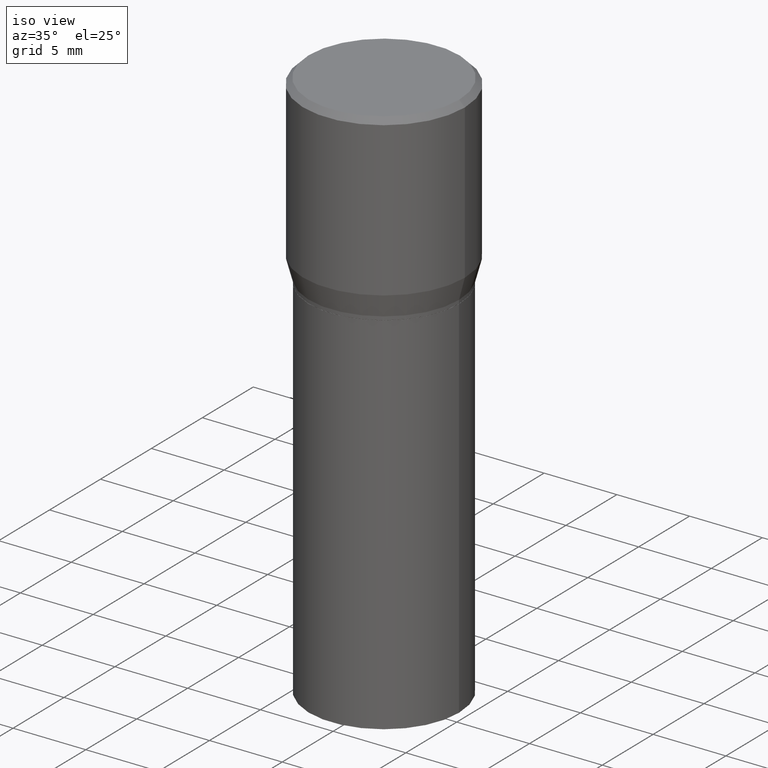
[diagram: clean part render]
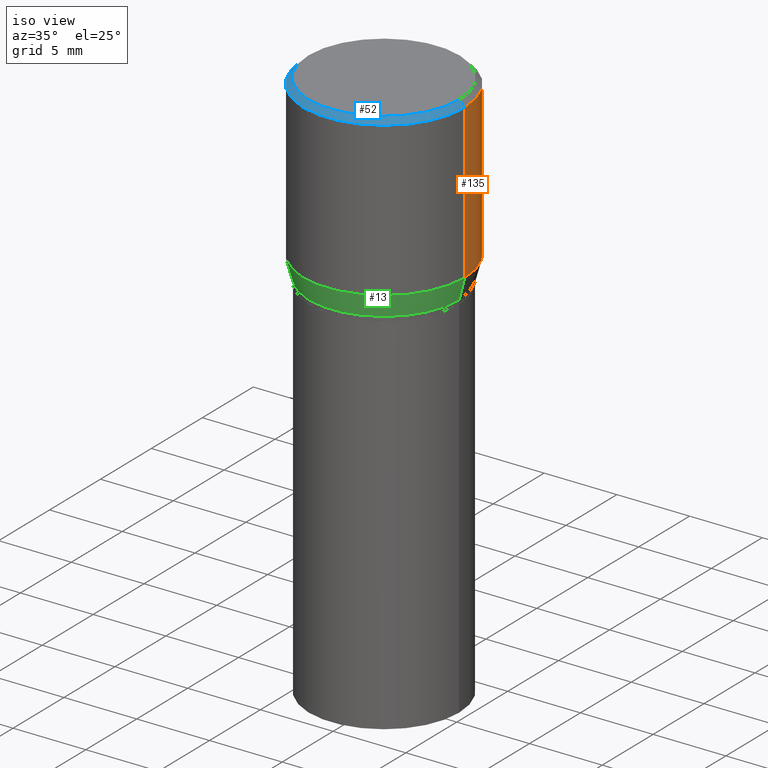
[diagram: same view with three faces highlighted in distinct colors, each labeled with its STEP entity id]
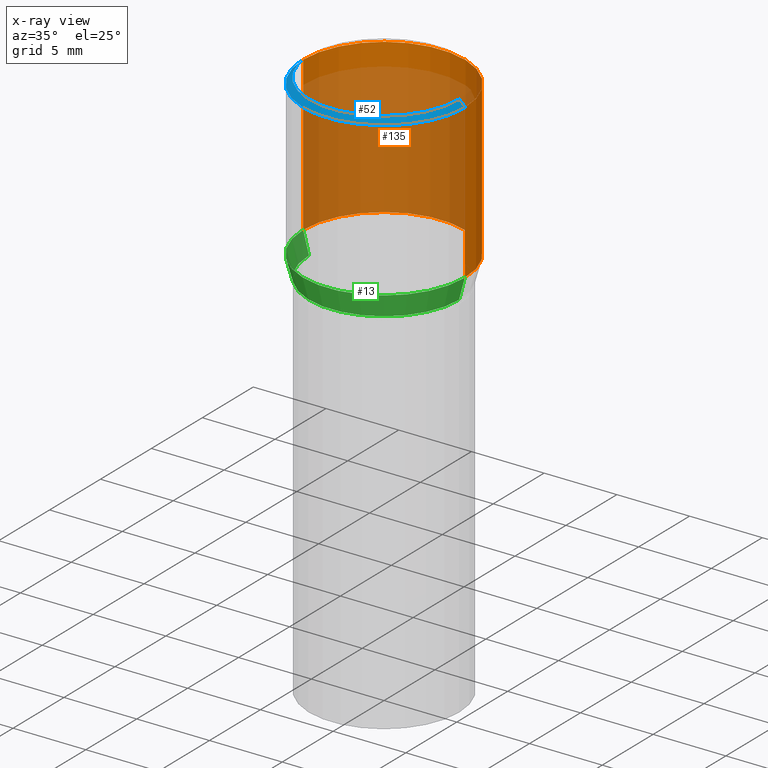
[diagram: x-ray of the same camera — body ghosted, the three highlighted faces saturated]
A machine part, iso view with three faces highlighted in distinct colors.
The next image is the same camera in x-ray (body ghosted, the three faces saturated) — at least one of them is partly hidden behind the body in this view.
Their STEP definitions:

[orange] entity #135 — the highlighted cylindrical surface (partial cylindrical patch) has radius 5.5562 mm, axis along (-0, 0, 1).
#2 = DIRECTION ( 'NONE',  ( 1.000000000000000000, -6.982962677686265133E-15, 0.000000000000000000 ) ) ;
#23 = ORIENTED_EDGE ( 'NONE', *, *, #252, .T. ) ;
#28 = CARTESIAN_POINT ( 'NONE',  ( -0.2187500000000000000, 4.741191543335144142E-17, -0.4315934048615475138 ) ) ;
#35 = DIRECTION ( 'NONE',  ( -2.445468806185136597E-29, 3.491481338843145583E-15, 1.000000000000000000 ) ) ;
#50 = AXIS2_PLACEMENT_3D ( 'NONE', #61, #419, #168 ) ;
#61 = CARTESIAN_POINT ( 'NONE',  ( 0.000000000000000000, 0.000000000000000000, 0.000000000000000000 ) ) ;
#63 = EDGE_CURVE ( 'NONE', #151, #363, #308, .T. ) ;
#64 = CARTESIAN_POINT ( 'NONE',  ( -0.2187500000000000000, 1.554312234475219157E-15, -1.076017050993260622E-29 ) ) ;
#96 = CYLINDRICAL_SURFACE ( 'NONE', #50, 0.2187500000000000000 ) ;
#107 = ORIENTED_EDGE ( 'NONE', *, *, #63, .F. ) ;
#130 = CARTESIAN_POINT ( 'NONE',  ( 3.668203209277705088E-31, -5.237222008264718399E-17, -0.01499999999999999944 ) ) ;
#135 = ADVANCED_FACE ( 'NONE', ( #417 ), #96, .T. ) ;
#136 = EDGE_LOOP ( 'NONE', ( #297, #23, #418, #107 ) ) ;
#137 = CARTESIAN_POINT ( 'NONE',  ( 0.2187500000000000000, -3.034423404785738170E-15, -0.4315934048615475138 ) ) ;
#138 = CIRCLE ( 'NONE', #207, 0.2187500000000000000 ) ;
#151 = VERTEX_POINT ( 'NONE', #137 ) ;
#162 = EDGE_CURVE ( 'NONE', #363, #211, #406, .T. ) ;
#168 = DIRECTION ( 'NONE',  ( 1.000000000000000000, -6.982962677686266711E-15, 4.876176775795935232E-29 ) ) ;
#205 = CARTESIAN_POINT ( 'NONE',  ( 0.2187500000000000000, -1.527523085743870843E-15, 1.066663669705360885E-29 ) ) ;
#207 = AXIS2_PLACEMENT_3D ( 'NONE', #272, #35, #2 ) ;
#211 = VERTEX_POINT ( 'NONE', #258 ) ;
#212 = AXIS2_PLACEMENT_3D ( 'NONE', #130, #284, #383 ) ;
#215 = VECTOR ( 'NONE', #341, 39.37007874015748143 ) ;
#218 = DIRECTION ( 'NONE',  ( -2.445468806185136877E-29, 3.491481338843145188E-15, 1.000000000000000000 ) ) ;
#223 = VERTEX_POINT ( 'NONE', #28 ) ;
#250 = VECTOR ( 'NONE', #218, 39.37007874015748143 ) ;
#252 = EDGE_CURVE ( 'NONE', #223, #211, #359, .T. ) ;
#258 = CARTESIAN_POINT ( 'NONE',  ( -0.2187500000000000000, 7.746759649129616577E-16, -0.01499999999999999944 ) ) ;
#272 = CARTESIAN_POINT ( 'NONE',  ( 1.055448208544146876E-29, -1.506900319041867721E-15, -0.4315934048615475138 ) ) ;
#284 = DIRECTION ( 'NONE',  ( -2.445468806185136597E-29, 3.491481338843145583E-15, 1.000000000000000000 ) ) ;
#297 = ORIENTED_EDGE ( 'NONE', *, *, #322, .T. ) ;
#308 = LINE ( 'NONE', #205, #215 ) ;
#322 = EDGE_CURVE ( 'NONE', #151, #223, #138, .T. ) ;
#341 = DIRECTION ( 'NONE',  ( -2.445468806185136877E-29, 3.491481338843145188E-15, 1.000000000000000000 ) ) ;
#359 = LINE ( 'NONE', #64, #250 ) ;
#363 = VERTEX_POINT ( 'NONE', #462 ) ;
#383 = DIRECTION ( 'NONE',  ( 1.000000000000000000, -6.982962677686266711E-15, 0.000000000000000000 ) ) ;
#406 = CIRCLE ( 'NONE', #212, 0.2187500000000000000 ) ;
#417 = FACE_OUTER_BOUND ( 'NONE', #136, .T. ) ;
#418 = ORIENTED_EDGE ( 'NONE', *, *, #162, .F. ) ;
#419 = DIRECTION ( 'NONE',  ( -2.445468806185136597E-29, 3.491481338843145583E-15, 1.000000000000000000 ) ) ;
#462 = CARTESIAN_POINT ( 'NONE',  ( 0.2187500000000000000, -1.579895305826517922E-15, -0.01499999999999999944 ) ) ;

[blue] entity #52 — the highlighted conical surface has half-angle 45 deg.
#11 = LINE ( 'NONE', #161, #388 ) ;
#52 = ADVANCED_FACE ( 'NONE', ( #438 ), #413, .T. ) ;
#53 = LINE ( 'NONE', #108, #99 ) ;
#68 = DIRECTION ( 'NONE',  ( 1.000000000000000000, -6.982962677686266711E-15, 0.000000000000000000 ) ) ;
#70 = EDGE_CURVE ( 'NONE', #450, #211, #11, .T. ) ;
#99 = VECTOR ( 'NONE', #293, 39.37007874015748143 ) ;
#108 = CARTESIAN_POINT ( 'NONE',  ( 0.2187500000000000000, -1.553106157095169608E-15, -0.01499999999999999944 ) ) ;
#123 = CARTESIAN_POINT ( 'NONE',  ( 3.668203209277705088E-31, -5.237222008264718399E-17, -0.01499999999999999944 ) ) ;
#128 = EDGE_CURVE ( 'NONE', #450, #427, #424, .T. ) ;
#161 = CARTESIAN_POINT ( 'NONE',  ( -0.2187500000000000000, 1.475150865661223567E-15, -0.01499999999999999944 ) ) ;
#171 = EDGE_CURVE ( 'NONE', #427, #363, #53, .T. ) ;
#175 = DIRECTION ( 'NONE',  ( -2.445468806185136597E-29, 3.491481338843145583E-15, 1.000000000000000000 ) ) ;
#206 = CARTESIAN_POINT ( 'NONE',  ( 0.2037499999999999867, -1.475466312070559275E-15, 1.060151966214670170E-16 ) ) ;
#211 = VERTEX_POINT ( 'NONE', #258 ) ;
#220 = CARTESIAN_POINT ( 'NONE',  ( 3.668203209277705088E-31, -5.237222008264718399E-17, -0.01499999999999999944 ) ) ;
#224 = CARTESIAN_POINT ( 'NONE',  ( -0.2037499999999999867, 1.448964755619900421E-15, 1.060151966214468518E-16 ) ) ;
#230 = DIRECTION ( 'NONE',  ( -1.000000000000000000, 6.982962677686266711E-15, 0.000000000000000000 ) ) ;
#231 = EDGE_CURVE ( 'NONE', #211, #363, #440, .T. ) ;
#240 = DIRECTION ( 'NONE',  ( -0.7071067811865452413, 2.468850131082233000E-15, -0.7071067811865497932 ) ) ;
#258 = CARTESIAN_POINT ( 'NONE',  ( -0.2187500000000000000, 7.746759649129616577E-16, -0.01499999999999999944 ) ) ;
#263 = ORIENTED_EDGE ( 'NONE', *, *, #231, .T. ) ;
#276 = AXIS2_PLACEMENT_3D ( 'NONE', #220, #393, #68 ) ;
#293 = DIRECTION ( 'NONE',  ( 0.7071067811865452413, -7.319954787623248157E-15, -0.7071067811865497932 ) ) ;
#304 = ORIENTED_EDGE ( 'NONE', *, *, #128, .F. ) ;
#317 = ORIENTED_EDGE ( 'NONE', *, *, #171, .F. ) ;
#331 = AXIS2_PLACEMENT_3D ( 'NONE', #352, #175, #380 ) ;
#337 = DIRECTION ( 'NONE',  ( 2.445468806185136597E-29, -3.491481338843145583E-15, -1.000000000000000000 ) ) ;
#352 = CARTESIAN_POINT ( 'NONE',  ( -2.592568563193567003E-45, 3.701500806376036554E-31, 1.060151966214568974E-16 ) ) ;
#363 = VERTEX_POINT ( 'NONE', #462 ) ;
#380 = DIRECTION ( 'NONE',  ( 1.000000000000000000, -6.982962677686266711E-15, 4.875065411617369217E-29 ) ) ;
#384 = EDGE_LOOP ( 'NONE', ( #317, #304, #394, #263 ) ) ;
#388 = VECTOR ( 'NONE', #240, 39.37007874015748143 ) ;
#393 = DIRECTION ( 'NONE',  ( -2.445468806185136597E-29, 3.491481338843145583E-15, 1.000000000000000000 ) ) ;
#394 = ORIENTED_EDGE ( 'NONE', *, *, #70, .T. ) ;
#413 = CONICAL_SURFACE ( 'NONE', #447, 0.2187500000000000000, 0.7853981633974450594 ) ;
#424 = CIRCLE ( 'NONE', #331, 0.2037499999999999867 ) ;
#427 = VERTEX_POINT ( 'NONE', #206 ) ;
#438 = FACE_OUTER_BOUND ( 'NONE', #384, .T. ) ;
#440 = CIRCLE ( 'NONE', #276, 0.2187500000000000000 ) ;
#447 = AXIS2_PLACEMENT_3D ( 'NONE', #123, #337, #230 ) ;
#450 = VERTEX_POINT ( 'NONE', #224 ) ;
#462 = CARTESIAN_POINT ( 'NONE',  ( 0.2187500000000000000, -1.579895305826517922E-15, -0.01499999999999999944 ) ) ;

[green] entity #13 — the highlighted conical surface has half-angle 15 deg.
#4 = CARTESIAN_POINT ( 'NONE',  ( -0.2031000000000000583, -1.101508221355132898E-16, -0.4900000000000001021 ) ) ;
#5 = VECTOR ( 'NONE', #422, 39.37007874015748854 ) ;
#13 = ADVANCED_FACE ( 'NONE', ( #436 ), #65, .T. ) ;
#21 = AXIS2_PLACEMENT_3D ( 'NONE', #198, #110, #122 ) ;
#28 = CARTESIAN_POINT ( 'NONE',  ( -0.2187500000000000000, 4.741191543335144142E-17, -0.4315934048615475138 ) ) ;
#31 = VECTOR ( 'NONE', #37, 39.37007874015748854 ) ;
#37 = DIRECTION ( 'NONE',  ( 0.2588190451025211836, 1.565188264969622559E-15, 0.9659258262890679791 ) ) ;
#44 = CARTESIAN_POINT ( 'NONE',  ( 0.2031000000000000583, -3.129065575871222509E-15, -0.4900000000000001021 ) ) ;
#54 = VERTEX_POINT ( 'NONE', #4 ) ;
#60 = VERTEX_POINT ( 'NONE', #44 ) ;
#65 = CONICAL_SURFACE ( 'NONE', #266, 0.2031000000000000583, 0.2617993877991499074 ) ;
#71 = ORIENTED_EDGE ( 'NONE', *, *, #319, .F. ) ;
#76 = EDGE_CURVE ( 'NONE', #54, #223, #451, .T. ) ;
#83 = DIRECTION ( 'NONE',  ( -2.445468806185136597E-29, 3.491481338843145583E-15, 1.000000000000000000 ) ) ;
#101 = CARTESIAN_POINT ( 'NONE',  ( 1.198279715030717173E-29, -1.710825856033141537E-15, -0.4900000000000001021 ) ) ;
#110 = DIRECTION ( 'NONE',  ( -2.445468806185136597E-29, 3.491481338843145583E-15, 1.000000000000000000 ) ) ;
#114 = AXIS2_PLACEMENT_3D ( 'NONE', #101, #457, #453 ) ;
#118 = ORIENTED_EDGE ( 'NONE', *, *, #303, .T. ) ;
#122 = DIRECTION ( 'NONE',  ( 1.000000000000000000, -6.982962677686265133E-15, 0.000000000000000000 ) ) ;
#137 = CARTESIAN_POINT ( 'NONE',  ( 0.2187500000000000000, -3.034423404785738170E-15, -0.4315934048615475138 ) ) ;
#151 = VERTEX_POINT ( 'NONE', #137 ) ;
#187 = ORIENTED_EDGE ( 'NONE', *, *, #193, .T. ) ;
#193 = EDGE_CURVE ( 'NONE', #54, #60, #339, .T. ) ;
#194 = CARTESIAN_POINT ( 'NONE',  ( 1.198279715030717173E-29, -1.710825856033141537E-15, -0.4900000000000001021 ) ) ;
#198 = CARTESIAN_POINT ( 'NONE',  ( 1.055448208544146876E-29, -1.506900319041867721E-15, -0.4315934048615475138 ) ) ;
#222 = CARTESIAN_POINT ( 'NONE',  ( 0.2031000000000000583, -3.129065575871222509E-15, -0.4900000000000001021 ) ) ;
#223 = VERTEX_POINT ( 'NONE', #28 ) ;
#228 = EDGE_LOOP ( 'NONE', ( #249, #187, #118, #71 ) ) ;
#249 = ORIENTED_EDGE ( 'NONE', *, *, #76, .F. ) ;
#266 = AXIS2_PLACEMENT_3D ( 'NONE', #194, #83, #366 ) ;
#303 = EDGE_CURVE ( 'NONE', #60, #151, #463, .T. ) ;
#312 = CIRCLE ( 'NONE', #21, 0.2187500000000000000 ) ;
#319 = EDGE_CURVE ( 'NONE', #223, #151, #312, .T. ) ;
#339 = CIRCLE ( 'NONE', #114, 0.2031000000000000583 ) ;
#349 = CARTESIAN_POINT ( 'NONE',  ( -0.2031000000000000583, -2.677135597043777931E-16, -0.4900000000000001021 ) ) ;
#366 = DIRECTION ( 'NONE',  ( 1.000000000000000000, -6.982962677686265922E-15, 0.000000000000000000 ) ) ;
#422 = DIRECTION ( 'NONE',  ( -0.2588190451025211836, 5.211531920934547886E-15, 0.9659258262890679791 ) ) ;
#436 = FACE_OUTER_BOUND ( 'NONE', #228, .T. ) ;
#451 = LINE ( 'NONE', #349, #5 ) ;
#453 = DIRECTION ( 'NONE',  ( 1.000000000000000000, -6.982962677686265922E-15, 0.000000000000000000 ) ) ;
#457 = DIRECTION ( 'NONE',  ( -2.445468806185136597E-29, 3.491481338843145583E-15, 1.000000000000000000 ) ) ;
#463 = LINE ( 'NONE', #222, #31 ) ;